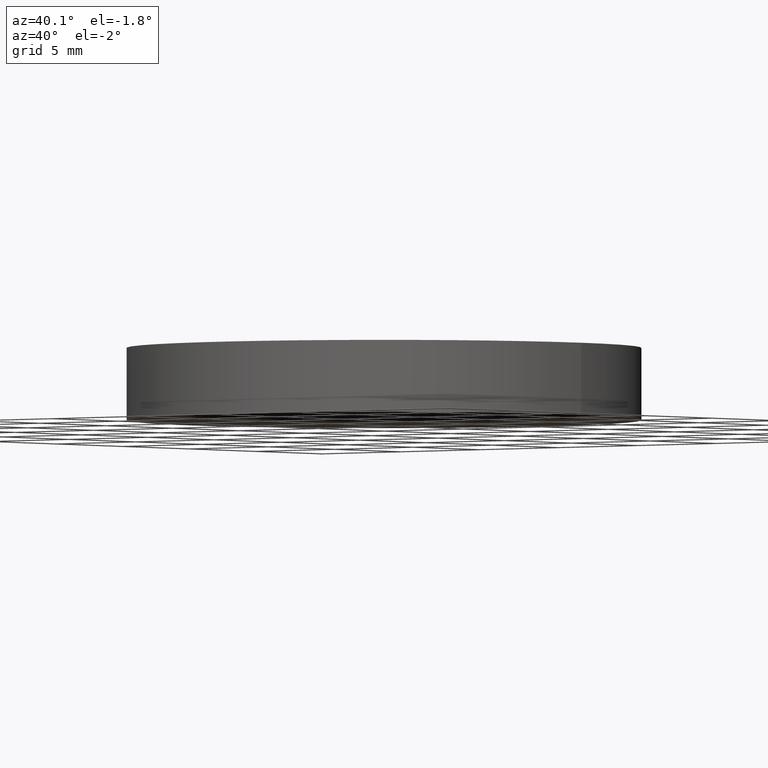
[diagram: clean part render]
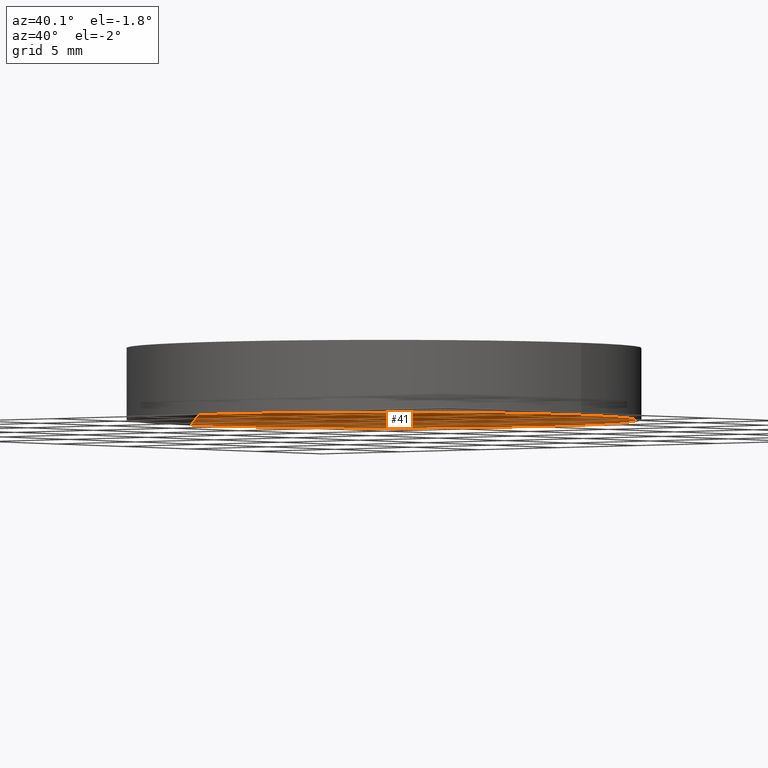
[diagram: same view with one face highlighted and labeled with its STEP entity id]
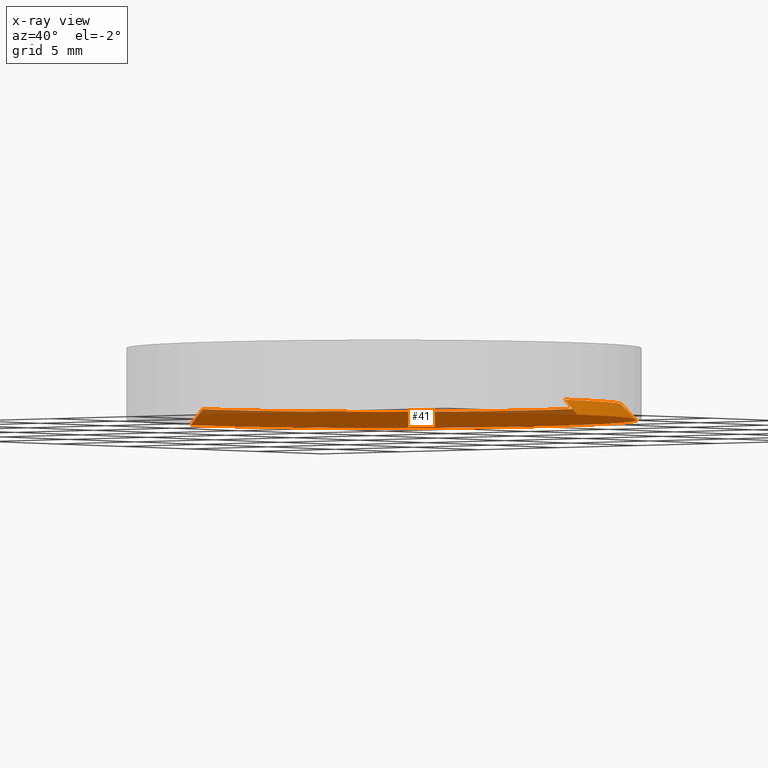
[diagram: x-ray of the same camera — body ghosted, the highlighted face saturated]
A machine part, auxiliary view. The second image highlights one B-rep face of the part: STEP entity #41.
The next image is the same camera in x-ray: the body ghosted, the highlighted face saturated — about 9% of this face is hidden behind the body in this view.
In plain terms, the highlighted conical surface has half-angle 45 deg.
Its self-contained STEP definition (entity closure, byte-faithful):
#31 = VECTOR ( 'NONE', #307, 1000.000000000000000 ) ;
#41 = ADVANCED_FACE ( 'NONE', ( #95 ), #167, .F. ) ;
#60 = LINE ( 'NONE', #312, #169 ) ;
#62 = EDGE_CURVE ( 'NONE', #278, #275, #60, .T. ) ;
#70 = AXIS2_PLACEMENT_3D ( 'NONE', #238, #208, #175 ) ;
#89 = EDGE_CURVE ( 'NONE', #219, #275, #327, .T. ) ;
#95 = FACE_OUTER_BOUND ( 'NONE', #127, .T. ) ;
#102 = CARTESIAN_POINT ( 'NONE',  ( 0.000000000000000000, 0.000000000000000000, 0.000000000000000000 ) ) ;
#127 = EDGE_LOOP ( 'NONE', ( #246, #380, #344, #245 ) ) ;
#151 = VERTEX_POINT ( 'NONE', #329 ) ;
#167 = CONICAL_SURFACE ( 'NONE', #269, 11.50000000000000000, 0.7853981633974471688 ) ;
#169 = VECTOR ( 'NONE', #353, 1000.000000000000000 ) ;
#175 = DIRECTION ( 'NONE',  ( -1.000000000000000000, 0.000000000000000000, 0.000000000000000000 ) ) ;
#178 = CARTESIAN_POINT ( 'NONE',  ( 11.50000000000000000, 1.408343819019456176E-15, 0.7500000000000093259 ) ) ;
#208 = DIRECTION ( 'NONE',  ( 0.000000000000000000, 0.000000000000000000, -1.000000000000000000 ) ) ;
#219 = VERTEX_POINT ( 'NONE', #234 ) ;
#220 = DIRECTION ( 'NONE',  ( 0.000000000000000000, 0.000000000000000000, -1.000000000000000000 ) ) ;
#221 = LINE ( 'NONE', #178, #31 ) ;
#234 = CARTESIAN_POINT ( 'NONE',  ( 12.25000000000000711, 1.500192328955508523E-15, 0.000000000000000000 ) ) ;
#238 = CARTESIAN_POINT ( 'NONE',  ( 0.000000000000000000, 0.000000000000000000, 0.7500000000000000000 ) ) ;
#245 = ORIENTED_EDGE ( 'NONE', *, *, #89, .F. ) ;
#246 = ORIENTED_EDGE ( 'NONE', *, *, #361, .F. ) ;
#262 = EDGE_CURVE ( 'NONE', #278, #151, #395, .T. ) ;
#269 = AXIS2_PLACEMENT_3D ( 'NONE', #409, #220, #283 ) ;
#275 = VERTEX_POINT ( 'NONE', #296 ) ;
#278 = VERTEX_POINT ( 'NONE', #299 ) ;
#283 = DIRECTION ( 'NONE',  ( -1.000000000000000000, 0.000000000000000000, 0.000000000000000000 ) ) ;
#296 = CARTESIAN_POINT ( 'NONE',  ( -12.25000000000000711, 0.000000000000000000, 0.000000000000000000 ) ) ;
#299 = CARTESIAN_POINT ( 'NONE',  ( -11.50000000000000000, 0.000000000000000000, 0.7500000000000000000 ) ) ;
#306 = DIRECTION ( 'NONE',  ( 0.000000000000000000, 0.000000000000000000, 1.000000000000000000 ) ) ;
#307 = DIRECTION ( 'NONE',  ( 0.7071067811865467956, 8.659560562354925463E-17, -0.7071067811865483499 ) ) ;
#312 = CARTESIAN_POINT ( 'NONE',  ( -11.50000000000000000, 0.000000000000000000, 0.7500000000000093259 ) ) ;
#327 = CIRCLE ( 'NONE', #403, 12.25000000000000711 ) ;
#329 = CARTESIAN_POINT ( 'NONE',  ( 11.50000000000000000, 1.454268073987482448E-15, 0.7500000000000000000 ) ) ;
#344 = ORIENTED_EDGE ( 'NONE', *, *, #62, .T. ) ;
#351 = DIRECTION ( 'NONE',  ( 1.000000000000000000, 0.000000000000000000, 0.000000000000000000 ) ) ;
#353 = DIRECTION ( 'NONE',  ( -0.7071067811865467956, 0.000000000000000000, -0.7071067811865483499 ) ) ;
#361 = EDGE_CURVE ( 'NONE', #151, #219, #221, .T. ) ;
#380 = ORIENTED_EDGE ( 'NONE', *, *, #262, .F. ) ;
#395 = CIRCLE ( 'NONE', #70, 11.50000000000000000 ) ;
#403 = AXIS2_PLACEMENT_3D ( 'NONE', #102, #306, #351 ) ;
#409 = CARTESIAN_POINT ( 'NONE',  ( 0.000000000000000000, 0.000000000000000000, 0.7500000000000093259 ) ) ;